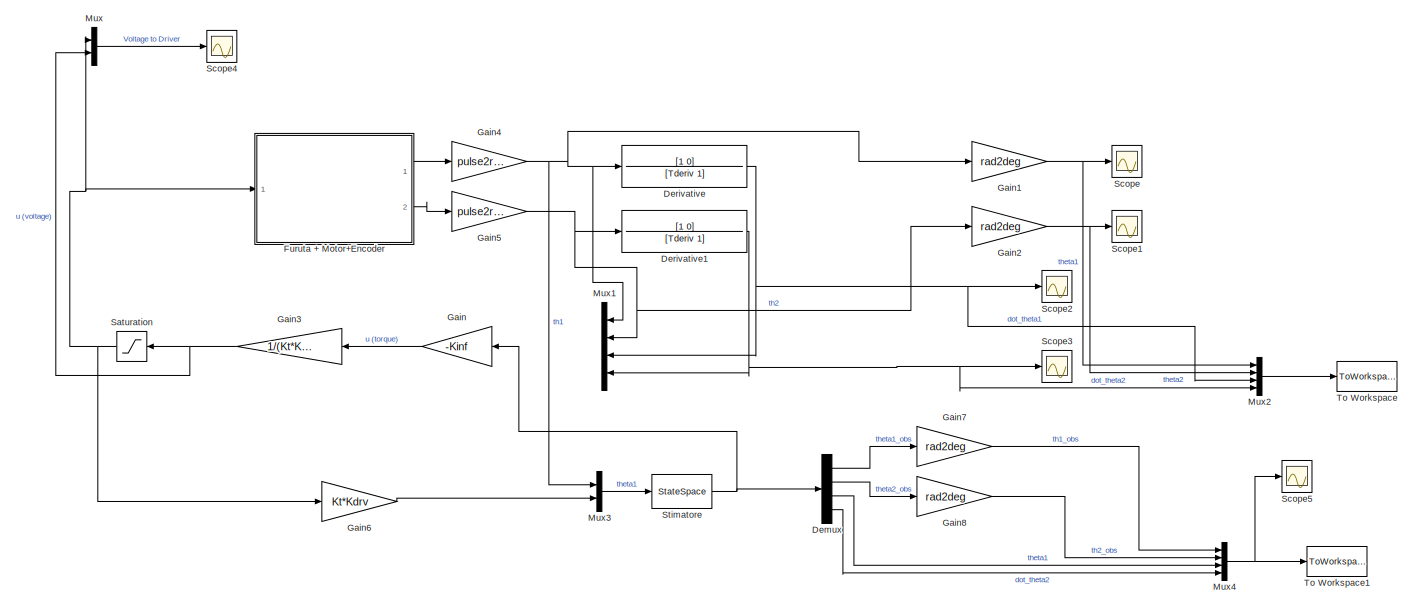
[diagram: root canvas - part 1/2, full width, middle band]
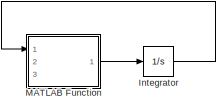
[diagram: root canvas - part 2/2, bottom center region]
MODEL slx_aa722f851a2a
KIND model
CONFIG AbsTol = auto
CONFIG EnableMultiTasking = off
CONFIG FixedStep = auto
CONFIG MaxStep = 0.05
CONFIG MinStep = auto
CONFIG RelTol = 1e-3
CONFIG SampleTimeConstraint = Unconstrained
CONFIG Solver = VariableStepAuto
CONFIG SolverName = VariableStepAuto
CONFIG StartTime = 0.0
CONFIG StopTime = 20
BLOCK [Demux] Demux
  DisplayOption = bar
  Ports = [1, 4]
BLOCK [TransferFcn] Derivative
  Denominator = [Tderiv 1]
  Numerator = [1 0]
BLOCK [TransferFcn] Derivative1
  Denominator = [Tderiv 1]
  Numerator = [1 0]
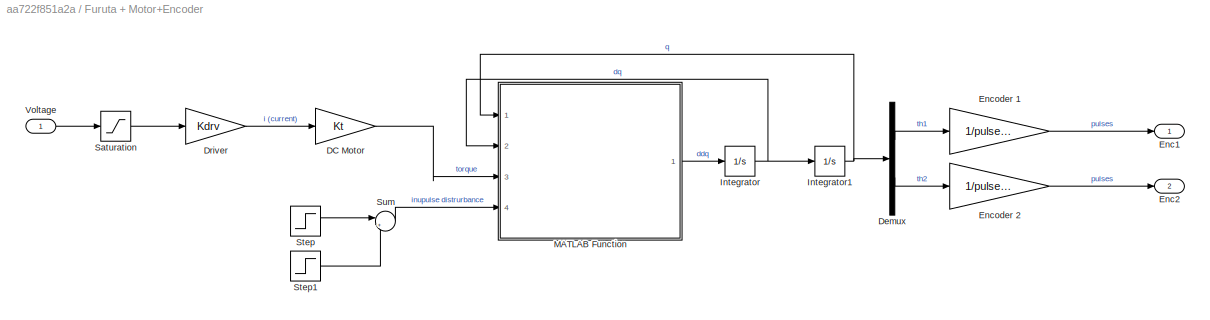
BLOCK [SubSystem] Furuta + Motor+Encoder
  Ports = [1, 2]
  RequestExecContextInheritance = off
BLOCK [Gain] Furuta + Motor+Encoder/DC Motor
  Gain = Kt
  OutDataTypeStr = Inherit: Inherit via internal rule
  ParamDataTypeStr = Inherit: Inherit via internal rule
  SaturateOnIntegerOverflow = off
BLOCK [Demux] Furuta + Motor+Encoder/Demux
  DisplayOption = bar
  Outputs = 2
  Ports = [1, 2]
BLOCK [Gain] Furuta + Motor+Encoder/Driver
  Gain = Kdrv
  OutDataTypeStr = Inherit: Inherit via internal rule
  ParamDataTypeStr = Inherit: Inherit via internal rule
  SaturateOnIntegerOverflow = off
BLOCK [Outport] Furuta + Motor+Encoder/Enc1
  IconDisplay = Port number
BLOCK [Outport] Furuta + Motor+Encoder/Enc2
  IconDisplay = Port number
  Port = 2
BLOCK [Gain] Furuta + Motor+Encoder/Encoder 1
  Gain = 1/pulse2rad
  OutDataTypeStr = Inherit: Inherit via internal rule
  ParamDataTypeStr = Inherit: Inherit via internal rule
  SaturateOnIntegerOverflow = off
BLOCK [Gain] Furuta + Motor+Encoder/Encoder 2
  Gain = 1/pulse2rad
  OutDataTypeStr = Inherit: Inherit via internal rule
  ParamDataTypeStr = Inherit: Inherit via internal rule
  SaturateOnIntegerOverflow = off
BLOCK [Integrator] Furuta + Motor+Encoder/Integrator
  InitialCondition = dq0
  Ports = [1, 1]
  ZeroCross = off
BLOCK [Integrator] Furuta + Motor+Encoder/Integrator1
  InitialCondition = q0
  Ports = [1, 1]
  ZeroCross = off
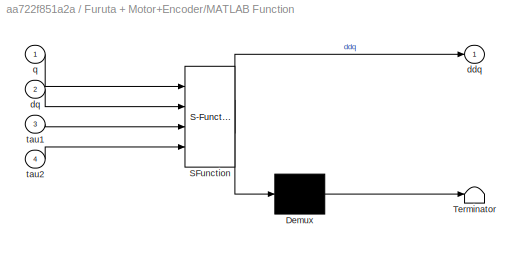
BLOCK [SubSystem] Furuta + Motor+Encoder/MATLAB Function
  ErrorFcn = Stateflow.Translate.translate
  PermitHierarchicalResolution = ExplicitOnly
  Ports = [4, 1]
  RequestExecContextInheritance = off
  SFBlockType = MATLAB Function
  TreatAsAtomicUnit = on
BLOCK [Demux] Furuta + Motor+Encoder/MATLAB Function/ Demux 
  Outputs = 1
  Ports = [1, 1]
BLOCK [S-Function] Furuta + Motor+Encoder/MATLAB Function/ SFunction 
  EnableBusSupport = on
  FunctionName = sf_sfun
  Parameters = J1,J2,g,l1,l2,m2
  PortCounts = [4 2]
  Ports = [4, 2]
  SFcnIsStateOwnerBlock = off
  SFunctionDeploymentMode = off
  Tag = Stateflow S-Function FurutaPendulumSys_LAB 2
BLOCK [Terminator] Furuta + Motor+Encoder/MATLAB Function/ Terminator 
BLOCK [Outport] Furuta + Motor+Encoder/MATLAB Function/ddq
  IconDisplay = Port number
BLOCK [Inport] Furuta + Motor+Encoder/MATLAB Function/dq
  IconDisplay = Port number
  Port = 2
BLOCK [Inport] Furuta + Motor+Encoder/MATLAB Function/q
  IconDisplay = Port number
BLOCK [Inport] Furuta + Motor+Encoder/MATLAB Function/tau1
  IconDisplay = Port number
  Port = 3
BLOCK [Inport] Furuta + Motor+Encoder/MATLAB Function/tau2
  IconDisplay = Port number
  Port = 4
BLOCK [Saturate] Furuta + Motor+Encoder/Saturation
  InputPortMap = u0
  LowerLimit = -Vmax
  Ports = [1, 1]
  UpperLimit = Vmax
BLOCK [Step] Furuta + Motor+Encoder/Step
  After = tau2_impulse
  SampleTime = 0
  Time = t_impulse
BLOCK [Step] Furuta + Motor+Encoder/Step1
  After = tau2_impulse
  SampleTime = 0
  Time = t_impulse+delta_impulse
BLOCK [Sum] Furuta + Motor+Encoder/Sum
  IconShape = round
  InputSameDT = off
  Inputs = |+-
  OutDataTypeStr = Inherit: Inherit via internal rule
  Ports = [2, 1]
  SaturateOnIntegerOverflow = off
BLOCK [Inport] Furuta + Motor+Encoder/Voltage
  IconDisplay = Port number
BLOCK [Gain] Gain
  Gain = -Kinf
  Multiplication = Matrix(K*u)
  OutDataTypeStr = Inherit: Inherit via internal rule
  ParamDataTypeStr = Inherit: Inherit via internal rule
  SaturateOnIntegerOverflow = off
BLOCK [Gain] Gain1
  Gain = rad2deg
  OutDataTypeStr = Inherit: Inherit via internal rule
  ParamDataTypeStr = Inherit: Inherit via internal rule
  SaturateOnIntegerOverflow = off
BLOCK [Gain] Gain2
  Gain = rad2deg
  OutDataTypeStr = Inherit: Inherit via internal rule
  ParamDataTypeStr = Inherit: Inherit via internal rule
  SaturateOnIntegerOverflow = off
BLOCK [Gain] Gain3
  Gain = 1/(Kt*Kdrv)
  OutDataTypeStr = Inherit: Inherit via internal rule
  ParamDataTypeStr = Inherit: Inherit via internal rule
  SaturateOnIntegerOverflow = off
BLOCK [Gain] Gain4
  Gain = pulse2rad
  OutDataTypeStr = Inherit: Inherit via internal rule
  ParamDataTypeStr = Inherit: Inherit via internal rule
  SaturateOnIntegerOverflow = off
BLOCK [Gain] Gain5
  Gain = pulse2rad
  OutDataTypeStr = Inherit: Inherit via internal rule
  ParamDataTypeStr = Inherit: Inherit via internal rule
  SaturateOnIntegerOverflow = off
BLOCK [Gain] Gain6
  Gain = Kt*Kdrv
  OutDataTypeStr = Inherit: Inherit via internal rule
  ParamDataTypeStr = Inherit: Inherit via internal rule
  SaturateOnIntegerOverflow = off
BLOCK [Gain] Gain7
  Gain = rad2deg
  OutDataTypeStr = Inherit: Inherit via internal rule
  ParamDataTypeStr = Inherit: Inherit via internal rule
  SaturateOnIntegerOverflow = off
BLOCK [Gain] Gain8
  Gain = rad2deg
  OutDataTypeStr = Inherit: Inherit via internal rule
  ParamDataTypeStr = Inherit: Inherit via internal rule
  SaturateOnIntegerOverflow = off
BLOCK [Integrator] Integrator
  Ports = [1, 1]
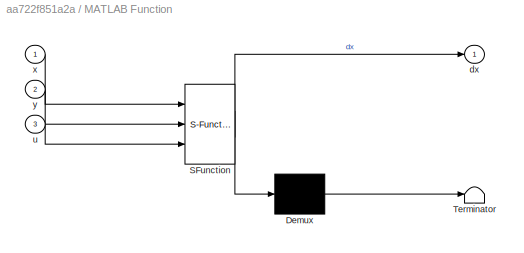
BLOCK [SubSystem] MATLAB Function
  ErrorFcn = Stateflow.Translate.translate
  PermitHierarchicalResolution = ExplicitOnly
  Ports = [3, 1]
  RequestExecContextInheritance = off
  SFBlockType = MATLAB Function
  TreatAsAtomicUnit = on
BLOCK [Demux] MATLAB Function/ Demux 
  Outputs = 1
  Ports = [1, 1]
BLOCK [S-Function] MATLAB Function/ SFunction 
  EnableBusSupport = on
  FunctionName = sf_sfun
  PortCounts = [3 2]
  Ports = [3, 2]
  SFcnIsStateOwnerBlock = off
  SFunctionDeploymentMode = off
  Tag = Stateflow S-Function FurutaPendulumSys_LAB 1
BLOCK [Terminator] MATLAB Function/ Terminator 
BLOCK [Outport] MATLAB Function/dx
  IconDisplay = Port number
BLOCK [Inport] MATLAB Function/u
  IconDisplay = Port number
  Port = 3
BLOCK [Inport] MATLAB Function/x
  IconDisplay = Port number
BLOCK [Inport] MATLAB Function/y
  IconDisplay = Port number
  Port = 2
BLOCK [Mux] Mux
  DisplayOption = bar
  Inputs = 2
  Ports = [2, 1]
BLOCK [Mux] Mux1
  DisplayOption = bar
  Ports = [4, 1]
BLOCK [Mux] Mux2
  DisplayOption = bar
  Ports = [4, 1]
BLOCK [Mux] Mux3
  DisplayOption = bar
  Inputs = 2
  Ports = [2, 1]
BLOCK [Mux] Mux4
  DisplayOption = bar
  Ports = [4, 1]
BLOCK [Saturate] Saturation
  InputPortMap = u0
  LowerLimit = -Vmax
  Ports = [1, 1]
  UpperLimit = Vmax
BLOCK [Scope] Scope
  Floating = off
  NumInputPorts = 1
  Ports = [1]
  ScopeSpecificationString = Simulink.scopes.TimeScopeBlockCfg('CurrentConfiguration', extmgr.ConfigurationSet(extmgr.Configuration('Core','General UI',true),extmgr.Configuration('Core','Source UI',true),extmgr.Configuration('Sources','WiredSimulink',true),extmgr.Configuration('Visuals','Time Domain',true,'SerializedDisplays',{struct('MinYLimReal','-54.49781','MaxYLimReal','10.87108','YLabelReal','','MinYLimMag','0.00000','Ma...<+1380ch>
BLOCK [Scope] Scope1
  Floating = off
  NumInputPorts = 1
  Ports = [1]
  ScopeSpecificationString = Simulink.scopes.TimeScopeBlockCfg('CurrentConfiguration', extmgr.ConfigurationSet(extmgr.Configuration('Core','General UI',true),extmgr.Configuration('Core','Source UI',true),extmgr.Configuration('Sources','WiredSimulink',true,'DataLoggingVariableName','ScopeData1'),extmgr.Configuration('Visuals','Time Domain',true,'SerializedDisplays',{struct('MinYLimReal','-31.89332','MaxYLimReal','13.97685','YL...<+1419ch>
BLOCK [Scope] Scope2
  Floating = off
  NumInputPorts = 1
  Ports = [1]
  ScopeSpecificationString = Simulink.scopes.TimeScopeBlockCfg('CurrentConfiguration', extmgr.ConfigurationSet(extmgr.Configuration('Core','General UI',true),extmgr.Configuration('Core','Source UI',true),extmgr.Configuration('Sources','WiredSimulink',true,'DataLoggingVariableName','ScopeData2'),extmgr.Configuration('Visuals','Time Domain',true,'SerializedDisplays',{struct('MinYLimReal','-1.97976','MaxYLimReal','0.69813','YLab...<+1398ch>
BLOCK [Scope] Scope3
  Floating = off
  NumInputPorts = 1
  Ports = [1]
  ScopeSpecificationString = Simulink.scopes.TimeScopeBlockCfg('CurrentConfiguration', extmgr.ConfigurationSet(extmgr.Configuration('Core','General UI',true),extmgr.Configuration('Core','Source UI',true),extmgr.Configuration('Sources','WiredSimulink',true,'DataLoggingVariableName','ScopeData3'),extmgr.Configuration('Visuals','Time Domain',true,'SerializedDisplays',{struct('MinYLimReal','-4.8695','MaxYLimReal','19.9336','YLabe...<+1367ch>
BLOCK [Scope] Scope4
  Floating = off
  NumInputPorts = 1
  Ports = [1]
  ScopeSpecificationString = Simulink.scopes.TimeScopeBlockCfg('CurrentConfiguration', extmgr.ConfigurationSet(extmgr.Configuration('Core','General UI',true),extmgr.Configuration('Core','Source UI',true),extmgr.Configuration('Sources','WiredSimulink',true,'DataLoggingVariableName','ScopeData2'),extmgr.Configuration('Visuals','Time Domain',true,'SerializedDisplays',{struct('MinYLimReal','-3.796','MaxYLimReal','4.38012','YLabel...<+1415ch>
BLOCK [Scope] Scope5
  Floating = off
  NumInputPorts = 1
  Ports = [1]
  ScopeSpecificationString = Simulink.scopes.TimeScopeBlockCfg('CurrentConfiguration', extmgr.ConfigurationSet(extmgr.Configuration('Core','General UI',true),extmgr.Configuration('Core','Source UI',true),extmgr.Configuration('Sources','WiredSimulink',true,'DataLoggingVariableName','ScopeData1'),extmgr.Configuration('Visuals','Time Domain',true,'SerializedDisplays',{struct('MinYLimReal','-28.6777','MaxYLimReal','22.02826','YLa...<+1471ch>
BLOCK [StateSpace] Stimatore
  A = A-L*C1
  B = [L B(:,1)]
  C = eye(4)
  D = zeros(4,2)
  InitialCondition = 0
  Ports = [1, 1]
BLOCK [ToWorkspace] To Workspace
  FixptAsFi = on
  MaxDataPoints = inf
  Ports = [1]
  SampleTime = -1
  Save2DSignal = 3-D array (concatenate along third dimension)
  SaveFormat = Structure With Time
  VariableName = data
BLOCK [ToWorkspace] To Workspace1
  FixptAsFi = on
  MaxDataPoints = inf
  Ports = [1]
  SampleTime = -1
  Save2DSignal = 3-D array (concatenate along third dimension)
  SaveFormat = Structure With Time
  VariableName = data2
LINE Demux:1 -> Gain7:1
LINE Demux:2 -> Gain8:1
LINE Demux:3 -> Mux4:3
LINE Demux:4 -> Mux4:4
NET Derivative1:1 -> Mux1:4, Mux2:4, Scope3:1
NET Derivative:1 -> Mux1:3, Mux2:3, Scope2:1
LINE Furuta + Motor+Encoder/DC Motor:1 -> Furuta + Motor+Encoder/MATLAB Function:3
LINE Furuta + Motor+Encoder/Demux:1 -> Furuta + Motor+Encoder/Encoder 1:1
LINE Furuta + Motor+Encoder/Demux:2 -> Furuta + Motor+Encoder/Encoder 2:1
LINE Furuta + Motor+Encoder/Driver:1 -> Furuta + Motor+Encoder/DC Motor:1
LINE Furuta + Motor+Encoder/Encoder 1:1 -> Furuta + Motor+Encoder/Enc1:1
LINE Furuta + Motor+Encoder/Encoder 2:1 -> Furuta + Motor+Encoder/Enc2:1
NET Furuta + Motor+Encoder/Integrator1:1 -> Furuta + Motor+Encoder/Demux:1, Furuta + Motor+Encoder/MATLAB Function:1
NET Furuta + Motor+Encoder/Integrator:1 -> Furuta + Motor+Encoder/Integrator1:1, Furuta + Motor+Encoder/MATLAB Function:2
LINE Furuta + Motor+Encoder/MATLAB Function:1 -> Furuta + Motor+Encoder/Integrator:1
LINE Furuta + Motor+Encoder/Saturation:1 -> Furuta + Motor+Encoder/Driver:1
LINE Furuta + Motor+Encoder/Step1:1 -> Furuta + Motor+Encoder/Sum:2
LINE Furuta + Motor+Encoder/Step:1 -> Furuta + Motor+Encoder/Sum:1
LINE Furuta + Motor+Encoder/Sum:1 -> Furuta + Motor+Encoder/MATLAB Function:4
LINE Furuta + Motor+Encoder/Voltage:1 -> Furuta + Motor+Encoder/Saturation:1
LINE Furuta + Motor+Encoder:1 -> Gain4:1
LINE Furuta + Motor+Encoder:2 -> Gain5:1
NET Gain1:1 -> Mux2:1, Scope:1
NET Gain2:1 -> Mux2:2, Scope1:1
NET Gain3:1 -> Mux:2, Saturation:1
NET Gain4:1 -> Derivative:1, Gain1:1, Mux1:1, Mux3:1
NET Gain5:1 -> Derivative1:1, Gain2:1, Mux1:2
LINE Gain6:1 -> Mux3:2
LINE Gain7:1 -> Mux4:1
LINE Gain8:1 -> Mux4:2
LINE Gain:1 -> Gain3:1
LINE Integrator:1 -> MATLAB Function:1
LINE MATLAB Function:1 -> Integrator:1
LINE Mux2:1 -> To Workspace:1
LINE Mux3:1 -> Stimatore:1
NET Mux4:1 -> Scope5:1, To Workspace1:1
LINE Mux:1 -> Scope4:1
NET Saturation:1 -> Furuta + Motor+Encoder:1, Gain6:1, Mux:1
NET Stimatore:1 -> Demux:1, Gain:1
note: NET lines group one-source signal fan-out (src -> all destinations, sorted); 1:1 wires keep LINE
CHART MATLAB Function states=1 transitions=1
  STATE_LABEL 'eML_blk_kernel()'
  STATE_LABEL 'SCRIPT:\nfunction dx = fcn(x, y, u)\n\n% F = [0 0 0 0; 0 0 8.7013 109.9756; 1 0 0 0; 0 1 0 0];\n% G = [1;0;0;0];\n% L = [29.056146939348846; 5.473045059700818e+02; 4.221298374806876e+02; 5.739828394138347e+03]\n% H = [0 0 3.654883203228587e+02 5.740982543848177e+02]\n% \n% dx = (F + L*H)*x - L*y + G*u;\n\ndx = 1;\n'
CHART Furuta + Motor+Encoder/MATLAB Function states=1 transitions=1
  STATE_LABEL 'eML_blk_kernel()'
  STATE_LABEL 'SCRIPT:\nfunction ddq = FurutaPendulum(q,dq,tau1,tau2,J1,J2,l1,l2,m2,g)\n\nth1 = q(1); \nth2 = q(2);\ndth1 = dq(1); \ndth2 = dq(2);\n\n% Define nonlinear model: M*ddq + C*dq + G = u\nM = [ J1 + m2*l1^2 + m2*l2^2*sin(th2)^2, -m2*l1*l2*cos(th2) ; ...\n -m2*l1*l2*cos(th2), J2 + m2*l2^2 ];\nC = [ m2*l2^2*dth2*sin(th2)*cos(th2), ...\n    m2*l2^2*dth1*sin(th2)*cos(th2) + m2*l1*l2*dth2*sin(th2); ...\n     -m2*l2^2*dt...<+100ch>'
